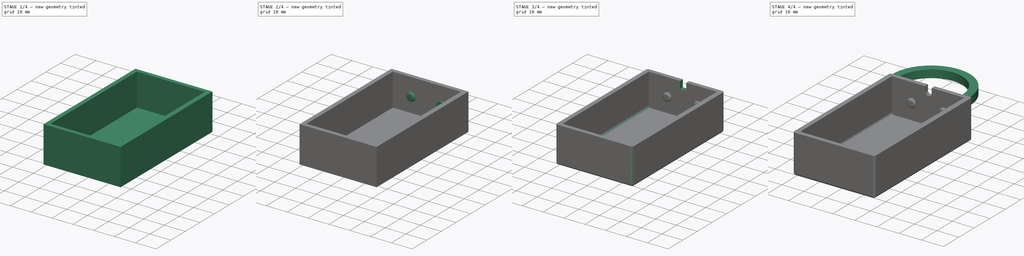
[diagram: build sequence overview — one tinted view per stage of 4, left to right]
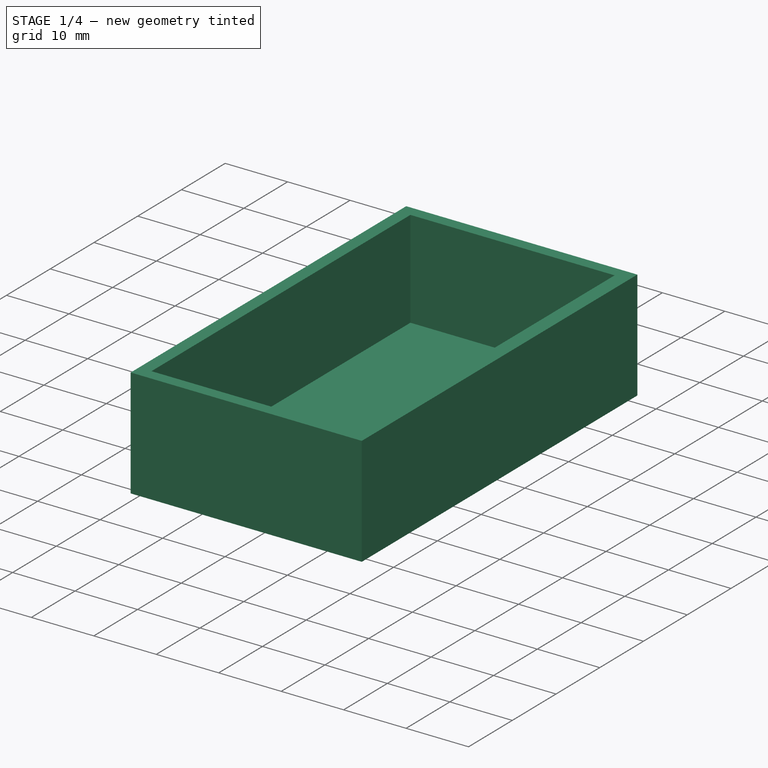
[diagram: stage 1 of 4 — iso view after this stage's code; geometry added in this stage tinted green]
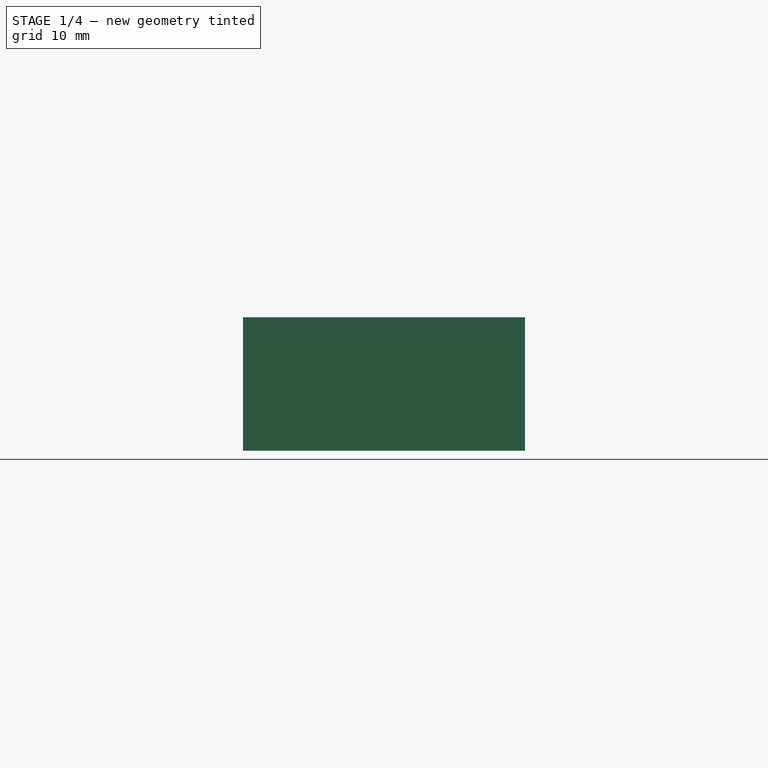
[diagram: stage 1 of 4 — front view after this stage's code; geometry added in this stage tinted green]
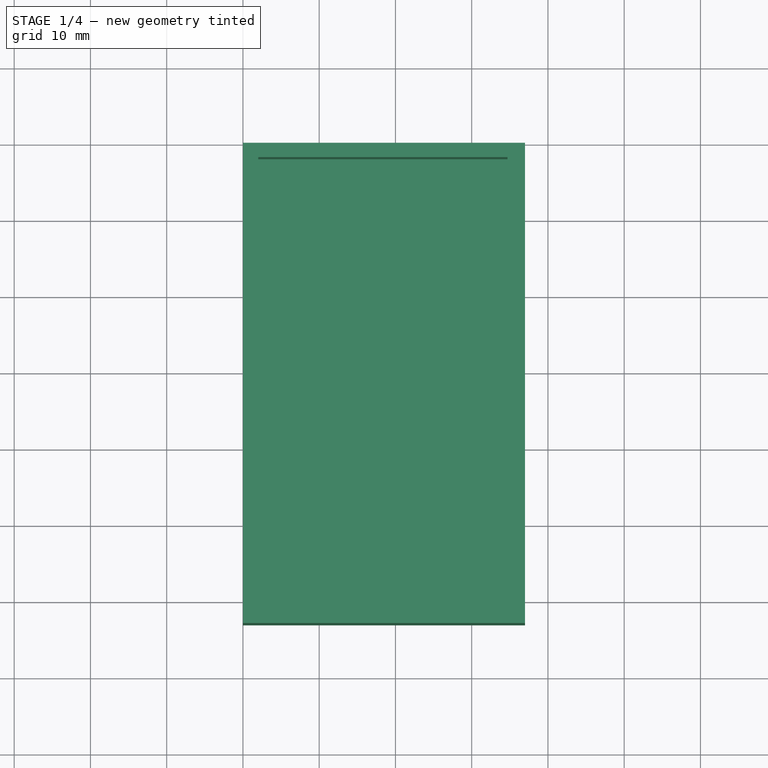
[diagram: stage 1 of 4 — top view after this stage's code; geometry added in this stage tinted green]
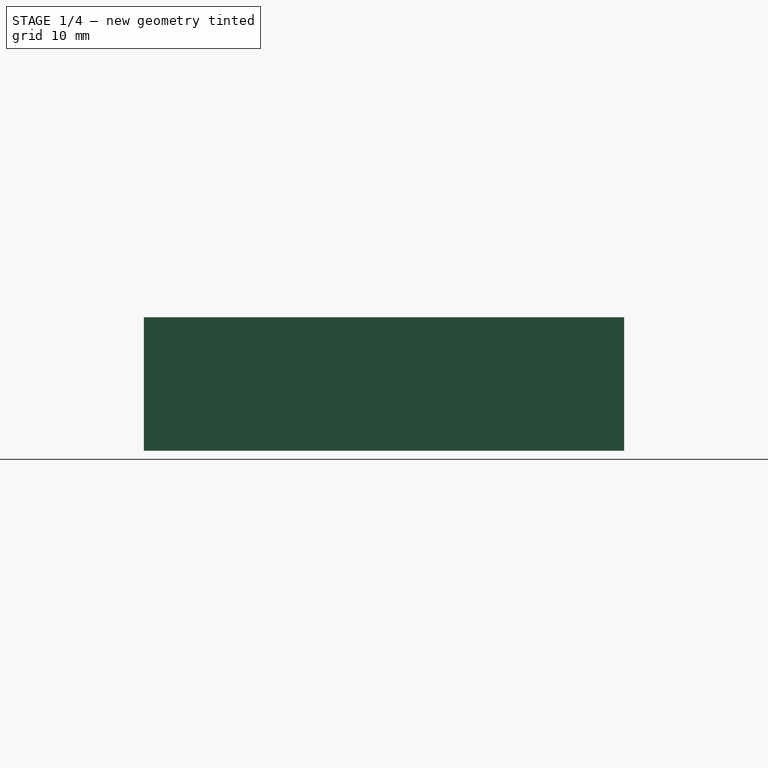
[diagram: stage 1 of 4 — right view after this stage's code; geometry added in this stage tinted green]
FCSTD DOCUMENT  (FreeCAD 0.20R29603 (Git))
Label: xiaomi BLE thermometer AA box_v2
License: All rights reserved
LicenseURL: http://en.wikipedia.org/wiki/All_rights_reserved
objects: Sketcher::SketchObject×7, PartDesign::Fillet×4, PartDesign::Pad×2, PartDesign::Pocket×2, PartDesign::Revolution×1, PartDesign::Body×1
note: 26 computed .brp shape members not serialized (recipe doc carries the construction recipe); baked Part::Feature solids carry a one-line shape summary decoded from their .brp

FEATURE [Sketcher::SketchObject] Sketch
  FullyConstrained = true
  sketch-geometry (4):
    g0: LineSegment StartX=0 StartY=0 StartZ=0 EndX=37 EndY=0 EndZ=0
    g1: LineSegment StartX=37 StartY=0 StartZ=0 EndX=37 EndY=-63 EndZ=0
    g2: LineSegment StartX=37 StartY=-63 StartZ=0 EndX=0 EndY=-63 EndZ=0
    g3: LineSegment StartX=0 StartY=-63 StartZ=0 EndX=0 EndY=0 EndZ=0
  constraints (11):
    c: Coincident(g0,g1)
    c: Coincident(g1,g2)
    c: Coincident(g2,g3)
    c: Coincident(g3,g0)
    c: Horizontal(g0)
    c: Horizontal(g2)
    c: Vertical(g1)
    c: Vertical(g3)
    c: Coincident(g0,g-1)
    c: DistanceX(g0,g0) = 37
    c: DistanceY(g1,g1) = 63
FEATURE [PartDesign::Pad] Pad
  Direction = (0,0,1)
  Length = 17.5
  Length2 = 10
  Profile = -> Sketch
  ReferenceAxis = -> Sketch [N_Axis]
  Type = 0
FEATURE [Sketcher::SketchObject] Sketch001
  FullyConstrained = true
  MapMode = 5
  Placement = pos=(0,0,17.5) rot=(0,0,1;0rad)
  Support = -> [Pad]
  sketch-geometry (4):
    g0: LineSegment StartX=2 StartY=-1.9 StartZ=0 EndX=34.7 EndY=-1.9 EndZ=0
    g1: LineSegment StartX=34.7 StartY=-1.9 StartZ=0 EndX=34.7 EndY=-61.1 EndZ=0
    g2: LineSegment StartX=34.7 StartY=-61.1 StartZ=0 EndX=2 EndY=-61.1 EndZ=0
    g3: LineSegment StartX=2 StartY=-61.1 StartZ=0 EndX=2 EndY=-1.9 EndZ=0
  constraints (12):
    c: Coincident(g0,g1)
    c: Coincident(g1,g2)
    c: Coincident(g2,g3)
    c: Coincident(g3,g0)
    c: Horizontal(g0)
    c: Horizontal(g2)
    c: Vertical(g1)
    c: Vertical(g3)
    c: DistanceX(g0,g0) = 32.7
    c: DistanceY(g1,g1) = 59.2
    c: DistanceY(g0,g-1) = 1.9
    c: DistanceX(g-1,g0) = 2
FEATURE [PartDesign::Pocket] Pocket
  BaseFeature = -> Pad
  Direction = (0,0,-1)
  Length = 15.6
  Length2 = 5
  Profile = -> Sketch001
  ReferenceAxis = -> Sketch001 [N_Axis]
  Type = 0
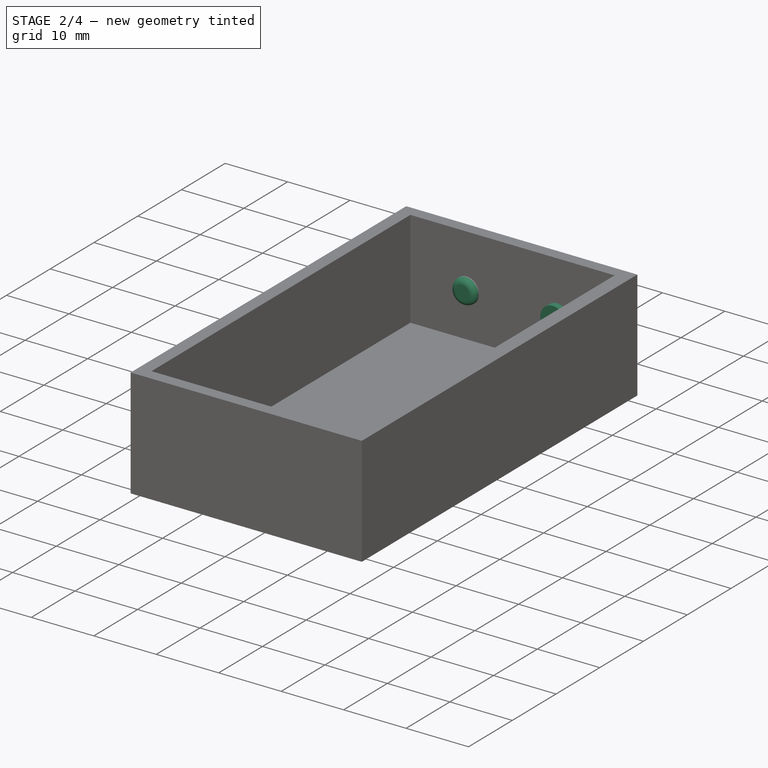
[diagram: stage 2 of 4 — iso view after this stage's code; geometry added in this stage tinted green]
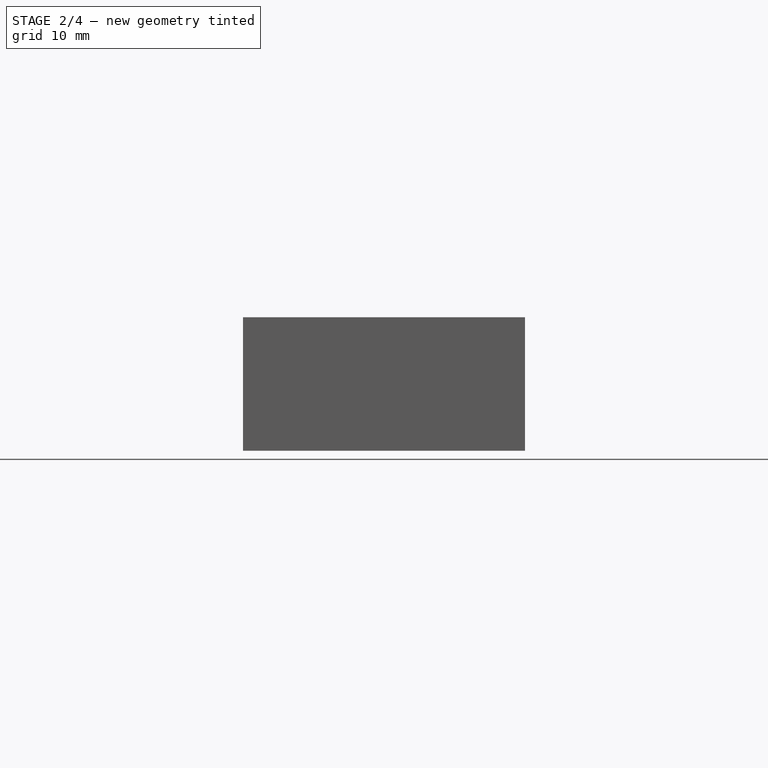
[diagram: stage 2 of 4 — front view after this stage's code; geometry added in this stage tinted green]
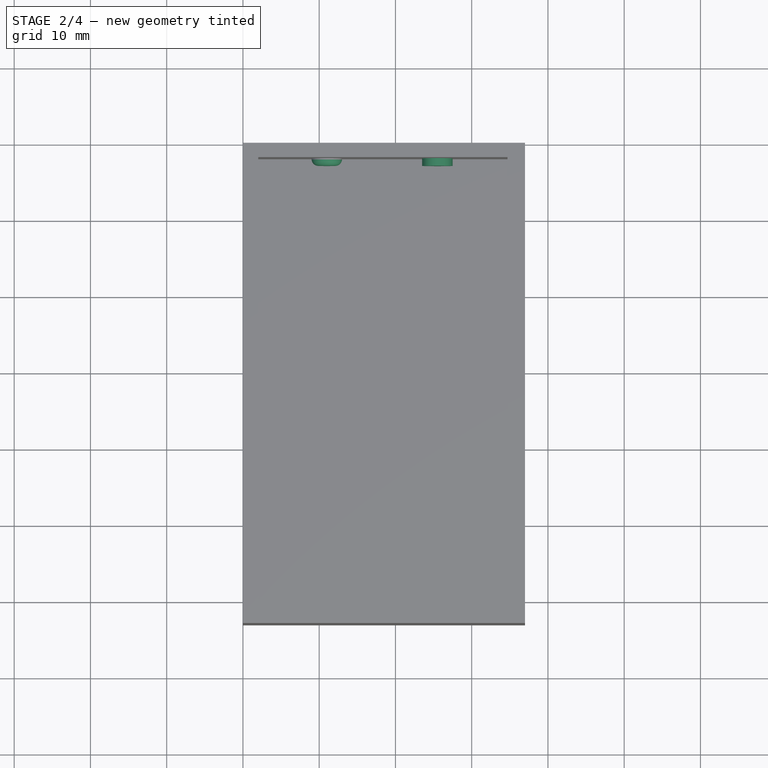
[diagram: stage 2 of 4 — top view after this stage's code; geometry added in this stage tinted green]
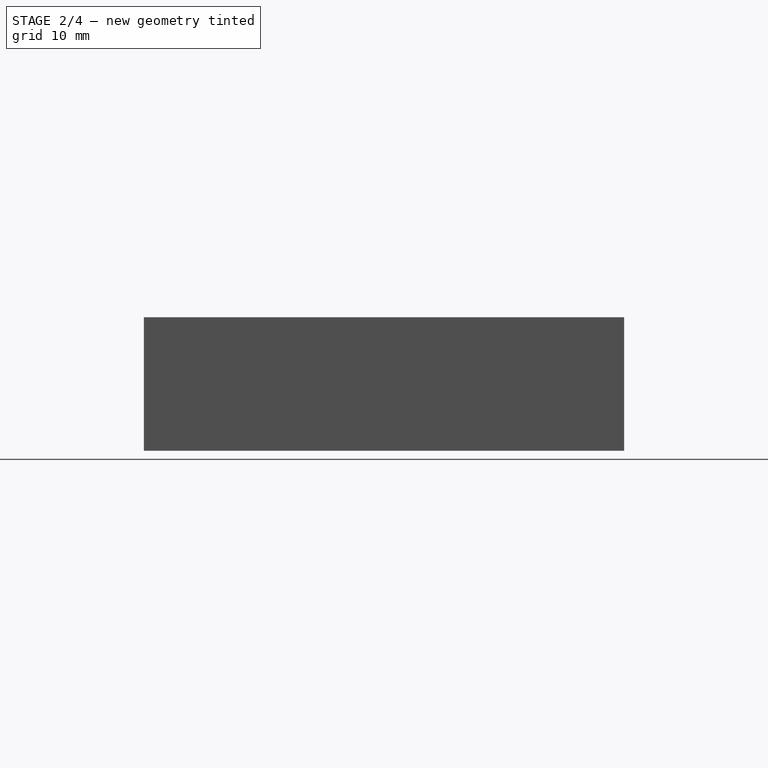
[diagram: stage 2 of 4 — right view after this stage's code; geometry added in this stage tinted green]
FEATURE [Sketcher::SketchObject] Sketch002
  FullyConstrained = true
  MapMode = 5
  Placement = pos=(0,-1.9,0) rot=(1,0,0;1.5708rad)
  Support = -> [Pocket]
  sketch-geometry (2):
    g0: Circle CenterX=11 CenterY=9 CenterZ=0 NormalX=0 NormalY=0 NormalZ=1 AngleXU=0 Radius=2
    g1: Circle CenterX=25.5 CenterY=9 CenterZ=0 NormalX=0 NormalY=0 NormalZ=1 AngleXU=0 Radius=2
  constraints (6):
    c: Radius(g0) = 2
    c: DistanceX(g-1,g0) = 11
    c: DistanceY(g-1,g0) = 9
    c: Radius(g1) = 2
    c: DistanceY(g-1,g1) = 9
    c: DistanceX(g0,g1) = 14.5
FEATURE [PartDesign::Pad] Pad001
  BaseFeature = -> Pocket
  Direction = (0,-1,2e-16)
  Length = 1
  Length2 = 10
  Profile = -> Sketch002
  ReferenceAxis = -> Sketch002 [N_Axis]
  Type = 0
FEATURE [PartDesign::Fillet] Fillet
  Base = -> Pad001 [Face14]
  BaseFeature = -> Pad001
  Radius = 0.9
  SupportTransform = false
  UseAllEdges = false
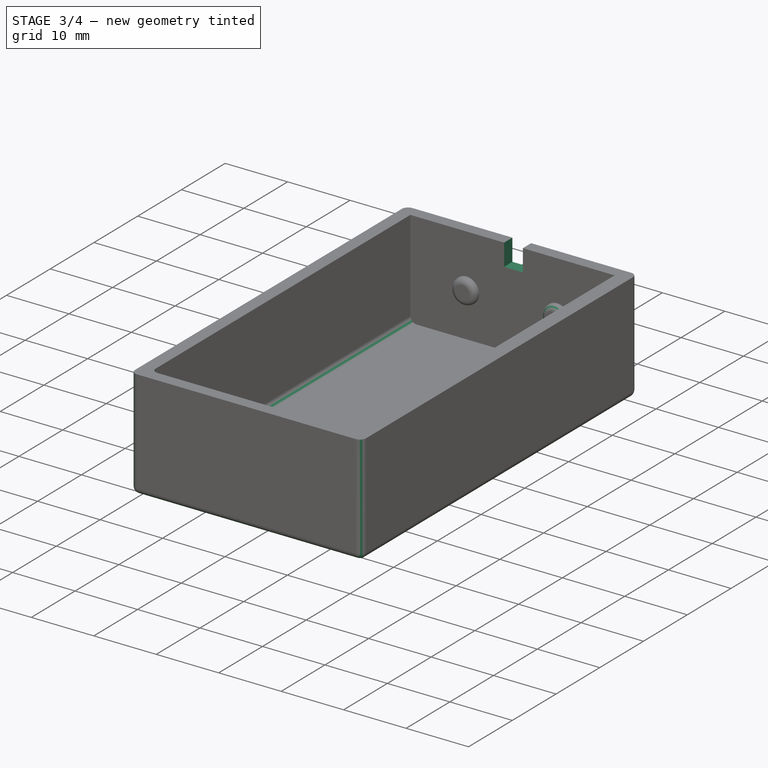
[diagram: stage 3 of 4 — iso view after this stage's code; geometry added in this stage tinted green]
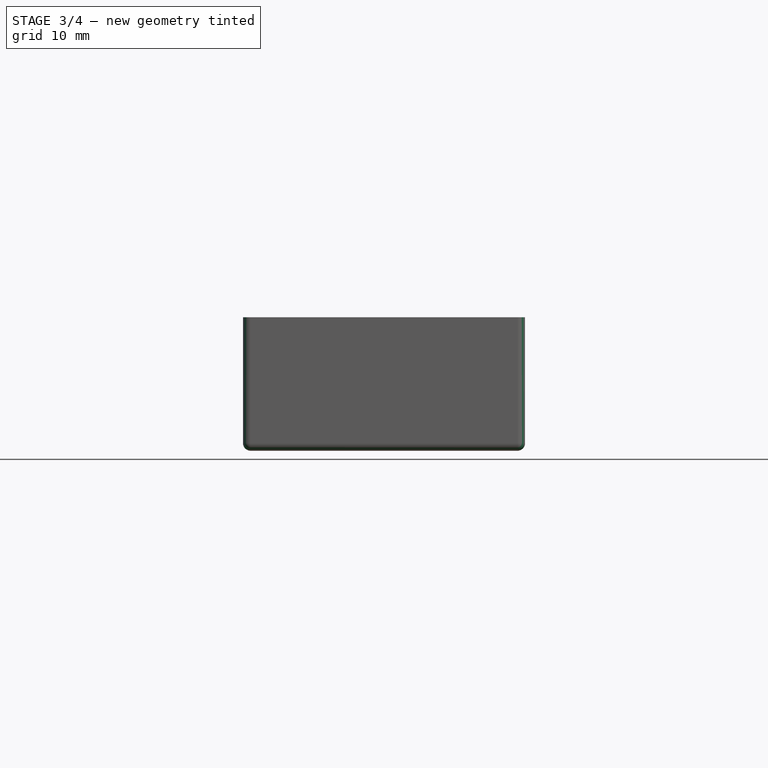
[diagram: stage 3 of 4 — front view after this stage's code; geometry added in this stage tinted green]
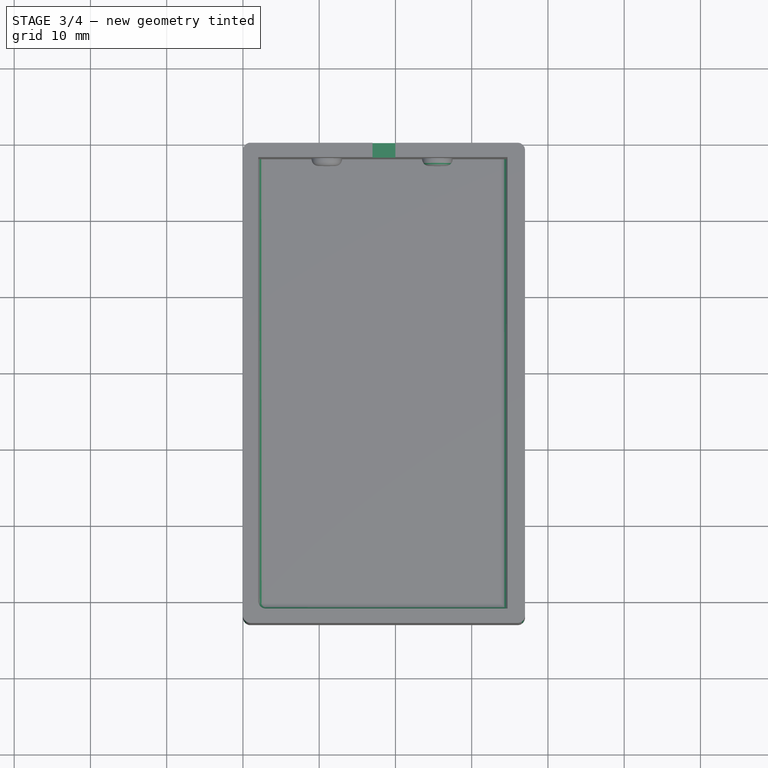
[diagram: stage 3 of 4 — top view after this stage's code; geometry added in this stage tinted green]
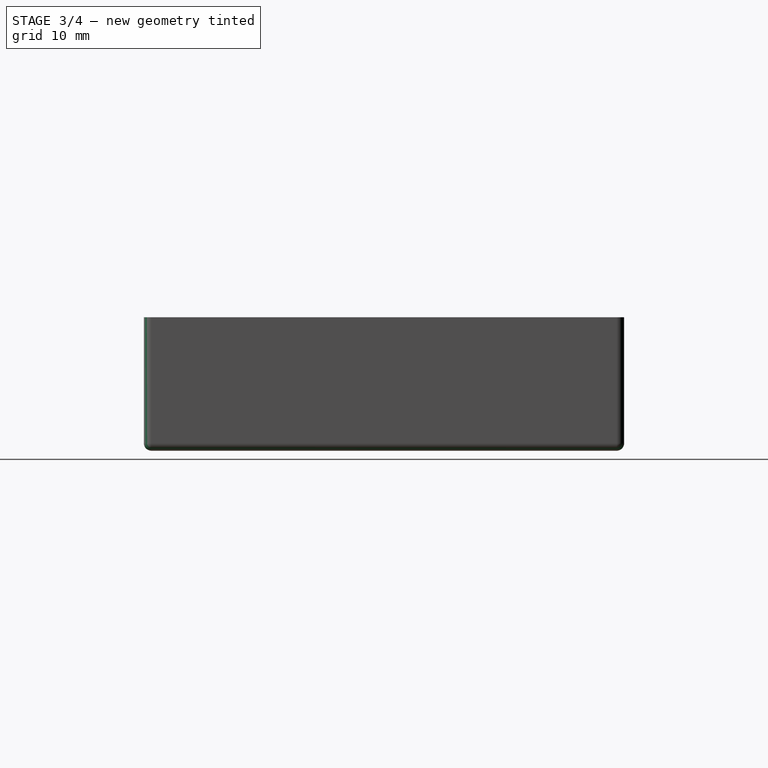
[diagram: stage 3 of 4 — right view after this stage's code; geometry added in this stage tinted green]
FEATURE [PartDesign::Fillet] Fillet001
  Base = -> Fillet [Edge24]
  BaseFeature = -> Fillet
  Radius = 0.9
  SupportTransform = false
  UseAllEdges = false
FEATURE [Sketcher::SketchObject] Sketch003
  FullyConstrained = true
  MapMode = 5
  Placement = pos=(0,0,0) rot=(0,0.707107,0.707107;3.14159rad)
  Support = -> [Fillet001]
FEATURE [Sketcher::SketchObject] Sketch004
  FullyConstrained = false
  MapMode = 5
  Placement = pos=(0,0,0) rot=(0,0.707107,0.707107;3.14159rad)
  Support = -> [Fillet001]
  sketch-geometry (4):
    g0: LineSegment StartX=-17 StartY=14 StartZ=0 EndX=-20 EndY=14 EndZ=0
    g1: LineSegment StartX=-20 StartY=14 StartZ=0 EndX=-20 EndY=27.3908 EndZ=0
    g2: LineSegment StartX=-20 StartY=27.3908 StartZ=0 EndX=-17 EndY=27.3908 EndZ=0
    g3: LineSegment StartX=-17 StartY=27.3908 StartZ=0 EndX=-17 EndY=14 EndZ=0
  constraints (11):
    c: Horizontal(g0)
    c: DistanceY(g-1,g0) = 14
    c: Coincident(g0,g1)
    c: Vertical(g1)
    c: Coincident(g1,g2)
    c: Horizontal(g2)
    c: Coincident(g2,g3)
    c: Coincident(g3,g0)
    c: Vertical(g3)
    c: DistanceX(g0,g0) = 3
    c: DistanceX(g0,g-1) = 17
FEATURE [PartDesign::Pocket] Pocket001
  BaseFeature = -> Fillet001
  Direction = (0,-1,2e-16)
  Length = 5
  Length2 = 5
  Profile = -> Sketch004
  ReferenceAxis = -> Sketch004 [N_Axis]
  Type = 0
FEATURE [PartDesign::Fillet] Fillet002
  Base = -> Pocket001 [Edge37,Edge32,Edge35,Edge38,Edge36,Edge33,Edge31,Edge34,Edge41,Edge44,Edge43,Edge42,Edge40,Edge39]
  BaseFeature = -> Pocket001
  Radius = 1
  SupportTransform = false
  UseAllEdges = false
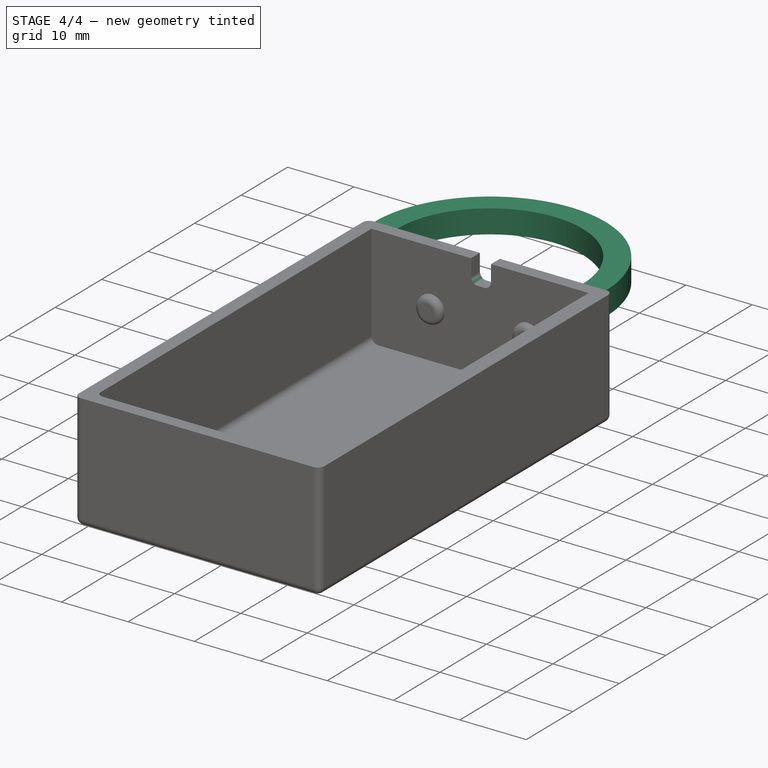
[diagram: stage 4 of 4 — iso view after this stage's code; geometry added in this stage tinted green]
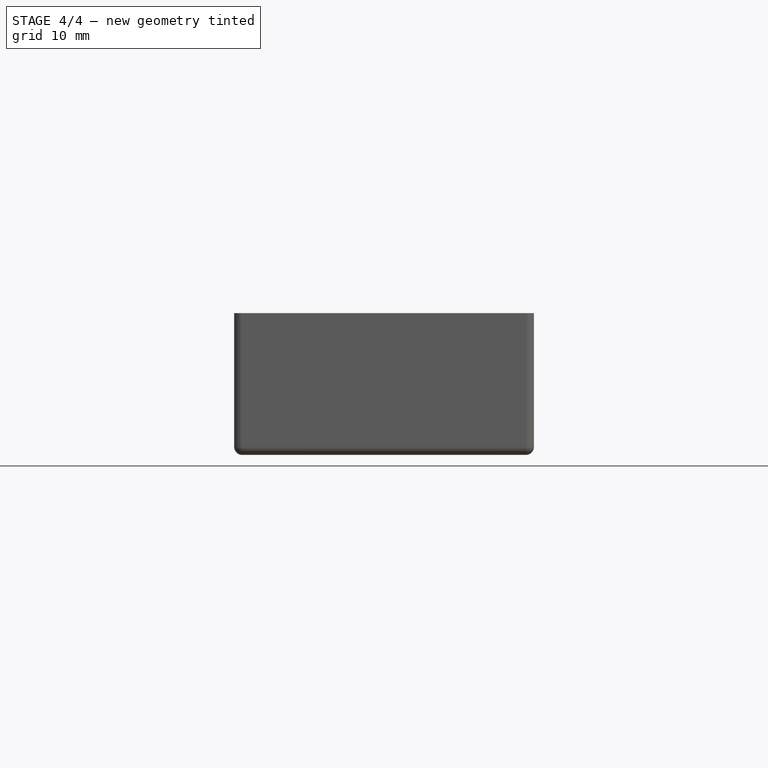
[diagram: stage 4 of 4 — front view after this stage's code; geometry added in this stage tinted green]
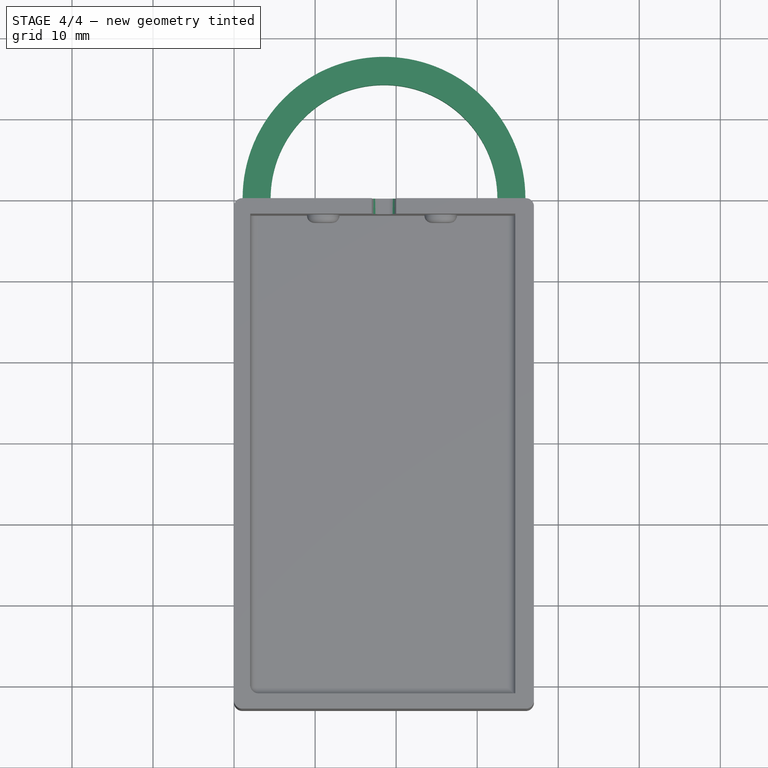
[diagram: stage 4 of 4 — top view after this stage's code; geometry added in this stage tinted green]
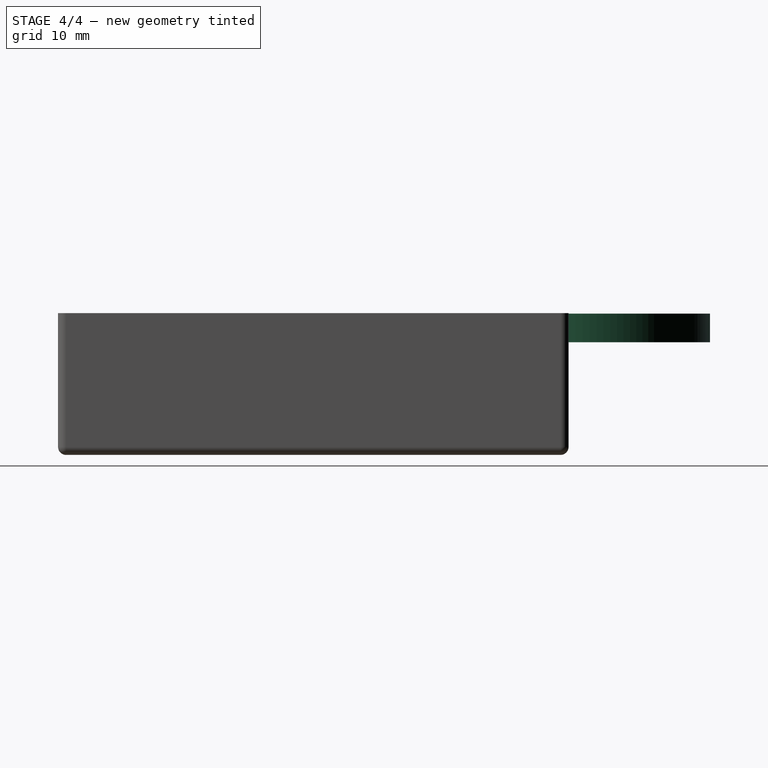
[diagram: stage 4 of 4 — right view after this stage's code; geometry added in this stage tinted green]
FEATURE [Sketcher::SketchObject] Sketch005
  FullyConstrained = false
  MapMode = 5
  Placement = pos=(0,0,0) rot=(0,0.707107,0.707107;3.14159rad)
  Support = -> [Fillet002]
  sketch-geometry (4):
    g0: LineSegment StartX=-4.50973 StartY=17.4393 StartZ=0 EndX=-1.05401 EndY=17.4393 EndZ=0
    g1: LineSegment StartX=-1.05401 StartY=17.4393 StartZ=0 EndX=-1.05401 EndY=13.8961 EndZ=0
    g2: LineSegment StartX=-1.05401 StartY=13.8961 StartZ=0 EndX=-4.50973 EndY=13.8961 EndZ=0
    g3: LineSegment StartX=-4.50973 StartY=13.8961 StartZ=0 EndX=-4.50973 EndY=17.4393 EndZ=0
  constraints (8):
    c: Coincident(g0,g1)
    c: Coincident(g1,g2)
    c: Coincident(g2,g3)
    c: Coincident(g3,g0)
    c: Horizontal(g0)
    c: Horizontal(g2)
    c: Vertical(g1)
    c: Vertical(g3)
FEATURE [Sketcher::SketchObject] Sketch006
  FullyConstrained = false
  MapMode = 5
  Placement = pos=(0,0,0) rot=(0,0.707107,0.707107;3.14159rad)
  Support = -> [Fillet002]
  sketch-geometry (1):
    g0: LineSegment StartX=-18.5 StartY=22.7776 StartZ=0 EndX=-18.5 EndY=-9.82187 EndZ=0
  constraints (2):
    c: Vertical(g0)
    c: DistanceX(g0,g-1) = 18.5
FEATURE [PartDesign::Revolution] Revolution
  Angle = 180
  Axis = (0,-2e-16,-1)
  Base = (18.5,5.1e-15,22.7776)
  BaseFeature = -> Fillet002
  Profile = -> Sketch005
  ReferenceAxis = -> Sketch006 [Edge1]
FEATURE [PartDesign::Fillet] Fillet003
  Base = -> Revolution [Edge39,Edge35]
  BaseFeature = -> Revolution
  Radius = 1
  SupportTransform = false
  UseAllEdges = false
FEATURE [PartDesign::Body] Body
  Group = -> [Sketch,Pad,Sketch001,Pocket,Sketch002,Pad001,Fillet,Fillet001,Sketch003,Sketch004,Pocket001,Fillet002,Sketch005,Sketch006,Revolution,Fillet003]
  Origin = -> Origin
  Tip = -> Fillet003
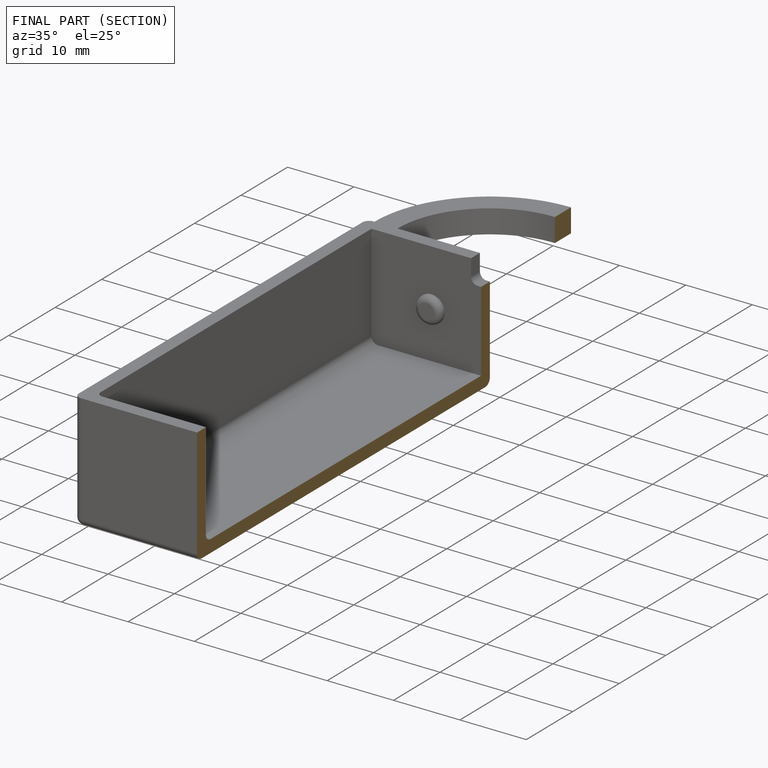
[diagram: finished part — half-section view (interior)]
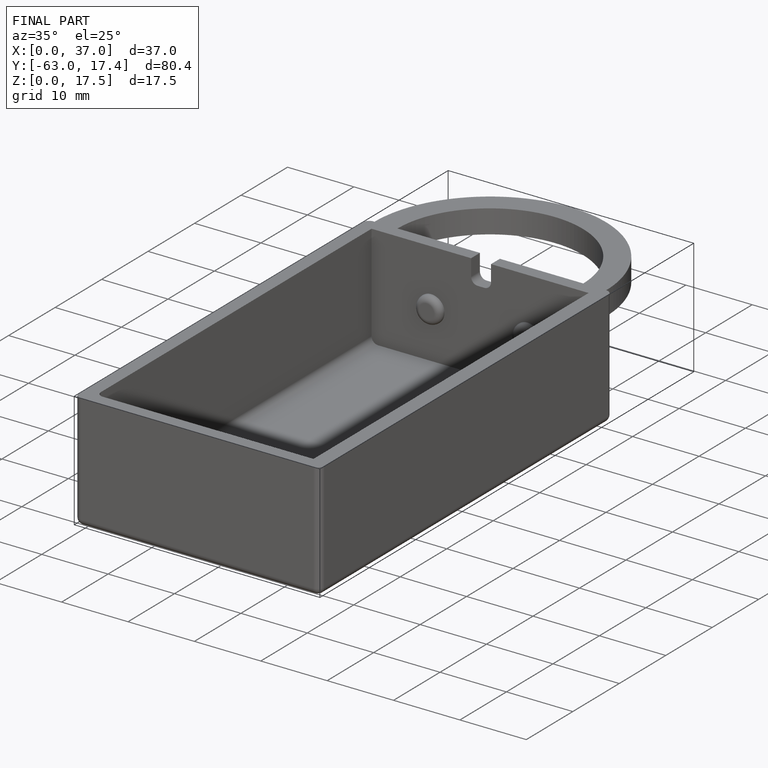
[diagram: finished part — iso view with bounding-box wireframe]
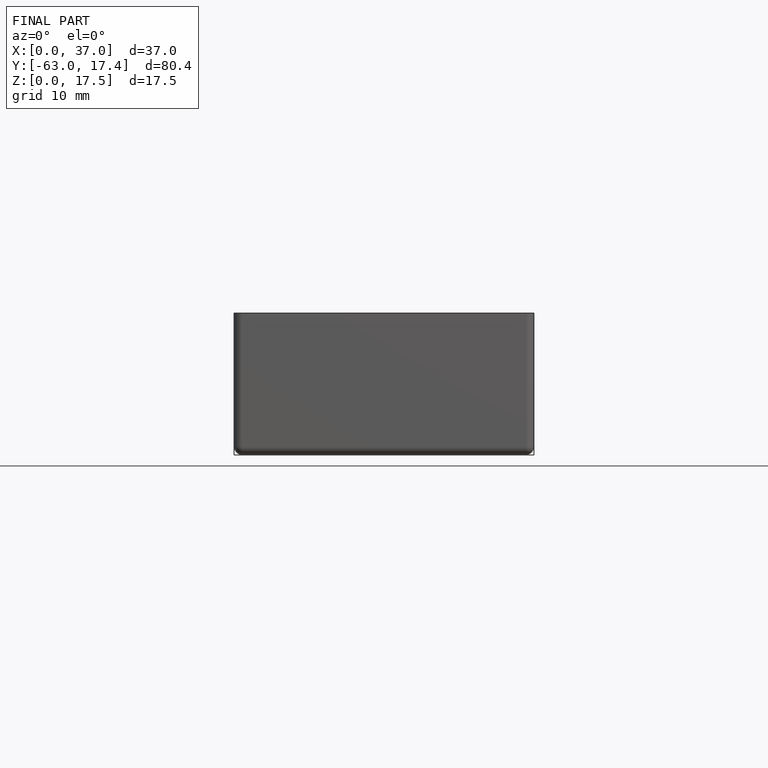
[diagram: finished part — front view with bounding-box wireframe]
